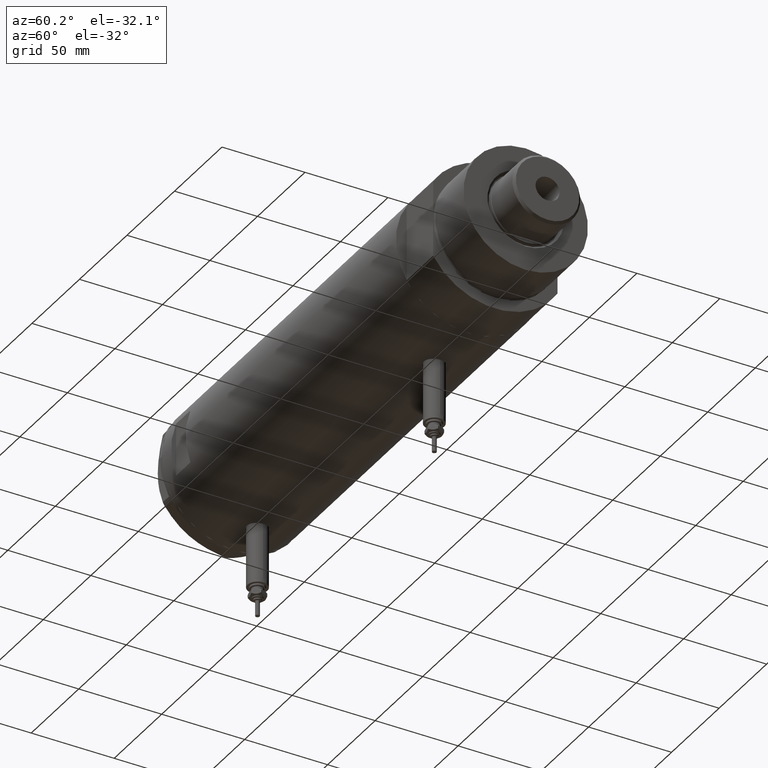
[diagram: clean part render]
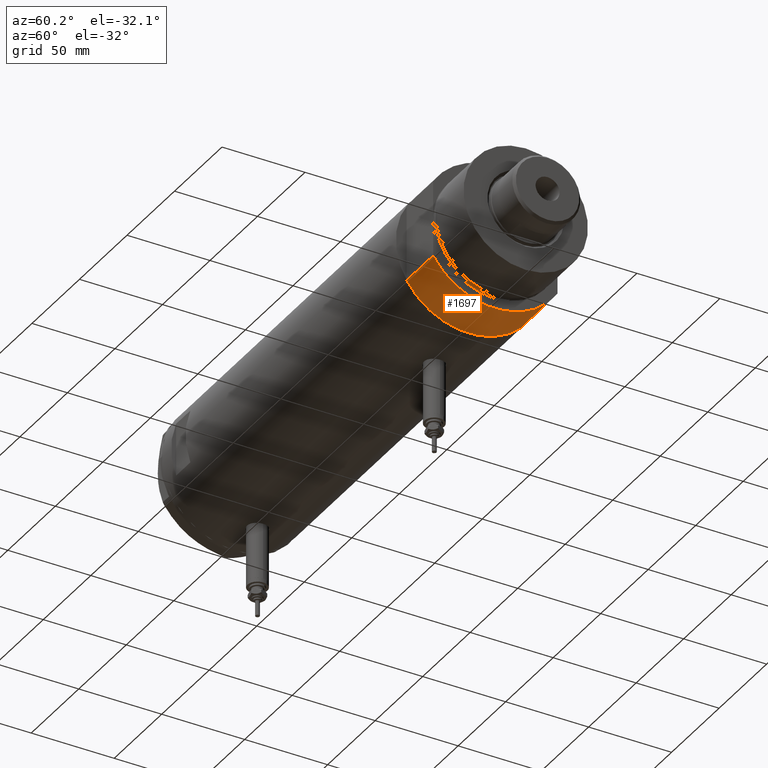
[diagram: same view with one face highlighted and labeled with its STEP entity id]
A machine part, auxiliary view. The second image highlights one B-rep face of the part: STEP entity #1697.
In plain terms, the highlighted cylindrical surface (partial cylindrical patch) has radius 44 mm, axis along (-1, -0, 0).
Its self-contained STEP definition (entity closure, byte-faithful):
#198 = DIRECTION ( 'NONE',  ( 1.000000000000000000, 0.000000000000000000, 0.000000000000000000 ) ) ;
#225 = AXIS2_PLACEMENT_3D ( 'NONE', #3875, #2410, #198 ) ;
#401 = DIRECTION ( 'NONE',  ( -1.000000000000000000, 0.000000000000000000, 0.000000000000000000 ) ) ;
#481 = CARTESIAN_POINT ( 'NONE',  ( 23.01629857296780557, -37.50000000000000000, 0.000000000000000000 ) ) ;
#556 = CARTESIAN_POINT ( 'NONE',  ( 23.01629857296780557, 37.50000000000000000, 0.000000000000000000 ) ) ;
#790 = EDGE_CURVE ( 'NONE', #5289, #4422, #2811, .T. ) ;
#801 = CARTESIAN_POINT ( 'NONE',  ( 23.01629857296780557, 37.50000000000000000, 0.000000000000000000 ) ) ;
#863 = EDGE_LOOP ( 'NONE', ( #3539, #5316, #1664, #3013 ) ) ;
#1140 = EDGE_CURVE ( 'NONE', #4091, #5808, #4001, .T. ) ;
#1573 = VECTOR ( 'NONE', #3576, 1000.000000000000000 ) ;
#1664 = ORIENTED_EDGE ( 'NONE', *, *, #4828, .T. ) ;
#1697 = ADVANCED_FACE ( 'NONE', ( #2795 ), #5609, .T. ) ;
#1793 = EDGE_CURVE ( 'NONE', #4422, #5808, #5664, .T. ) ;
#2359 = CARTESIAN_POINT ( 'NONE',  ( 23.01629857296780557, -37.50000000000000000, 0.000000000000000000 ) ) ;
#2410 = DIRECTION ( 'NONE',  ( 0.000000000000000000, 0.000000000000000000, 1.000000000000000000 ) ) ;
#2538 = VECTOR ( 'NONE', #4622, 1000.000000000000000 ) ;
#2792 = CARTESIAN_POINT ( 'NONE',  ( 0.000000000000000000, 0.000000000000000000, 0.000000000000000000 ) ) ;
#2795 = FACE_OUTER_BOUND ( 'NONE', #863, .T. ) ;
#2811 = LINE ( 'NONE', #2359, #2538 ) ;
#3013 = ORIENTED_EDGE ( 'NONE', *, *, #1140, .T. ) ;
#3539 = ORIENTED_EDGE ( 'NONE', *, *, #1793, .F. ) ;
#3576 = DIRECTION ( 'NONE',  ( -0.000000000000000000, -0.000000000000000000, 1.000000000000000000 ) ) ;
#3746 = CARTESIAN_POINT ( 'NONE',  ( 0.000000000000000000, 0.000000000000000000, 27.89999999999999858 ) ) ;
#3875 = CARTESIAN_POINT ( 'NONE',  ( 0.000000000000000000, 0.000000000000000000, 27.89999999999999858 ) ) ;
#4001 = LINE ( 'NONE', #801, #1573 ) ;
#4027 = AXIS2_PLACEMENT_3D ( 'NONE', #2792, #4206, #4662 ) ;
#4091 = VERTEX_POINT ( 'NONE', #556 ) ;
#4150 = DIRECTION ( 'NONE',  ( -0.000000000000000000, -0.000000000000000000, -1.000000000000000000 ) ) ;
#4206 = DIRECTION ( 'NONE',  ( 0.000000000000000000, 0.000000000000000000, 1.000000000000000000 ) ) ;
#4409 = CARTESIAN_POINT ( 'NONE',  ( 23.01629857296780557, -37.50000000000000000, 27.89999999999999858 ) ) ;
#4422 = VERTEX_POINT ( 'NONE', #4409 ) ;
#4622 = DIRECTION ( 'NONE',  ( -0.000000000000000000, -0.000000000000000000, 1.000000000000000000 ) ) ;
#4662 = DIRECTION ( 'NONE',  ( 1.000000000000000000, 0.000000000000000000, 0.000000000000000000 ) ) ;
#4828 = EDGE_CURVE ( 'NONE', #5289, #4091, #5488, .T. ) ;
#5286 = CARTESIAN_POINT ( 'NONE',  ( 23.01629857296780557, 37.50000000000000000, 27.89999999999999858 ) ) ;
#5289 = VERTEX_POINT ( 'NONE', #481 ) ;
#5316 = ORIENTED_EDGE ( 'NONE', *, *, #790, .F. ) ;
#5488 = CIRCLE ( 'NONE', #4027, 44.00000000000000000 ) ;
#5609 = CYLINDRICAL_SURFACE ( 'NONE', #5948, 44.00000000000000000 ) ;
#5664 = CIRCLE ( 'NONE', #225, 44.00000000000000000 ) ;
#5808 = VERTEX_POINT ( 'NONE', #5286 ) ;
#5948 = AXIS2_PLACEMENT_3D ( 'NONE', #3746, #4150, #401 ) ;